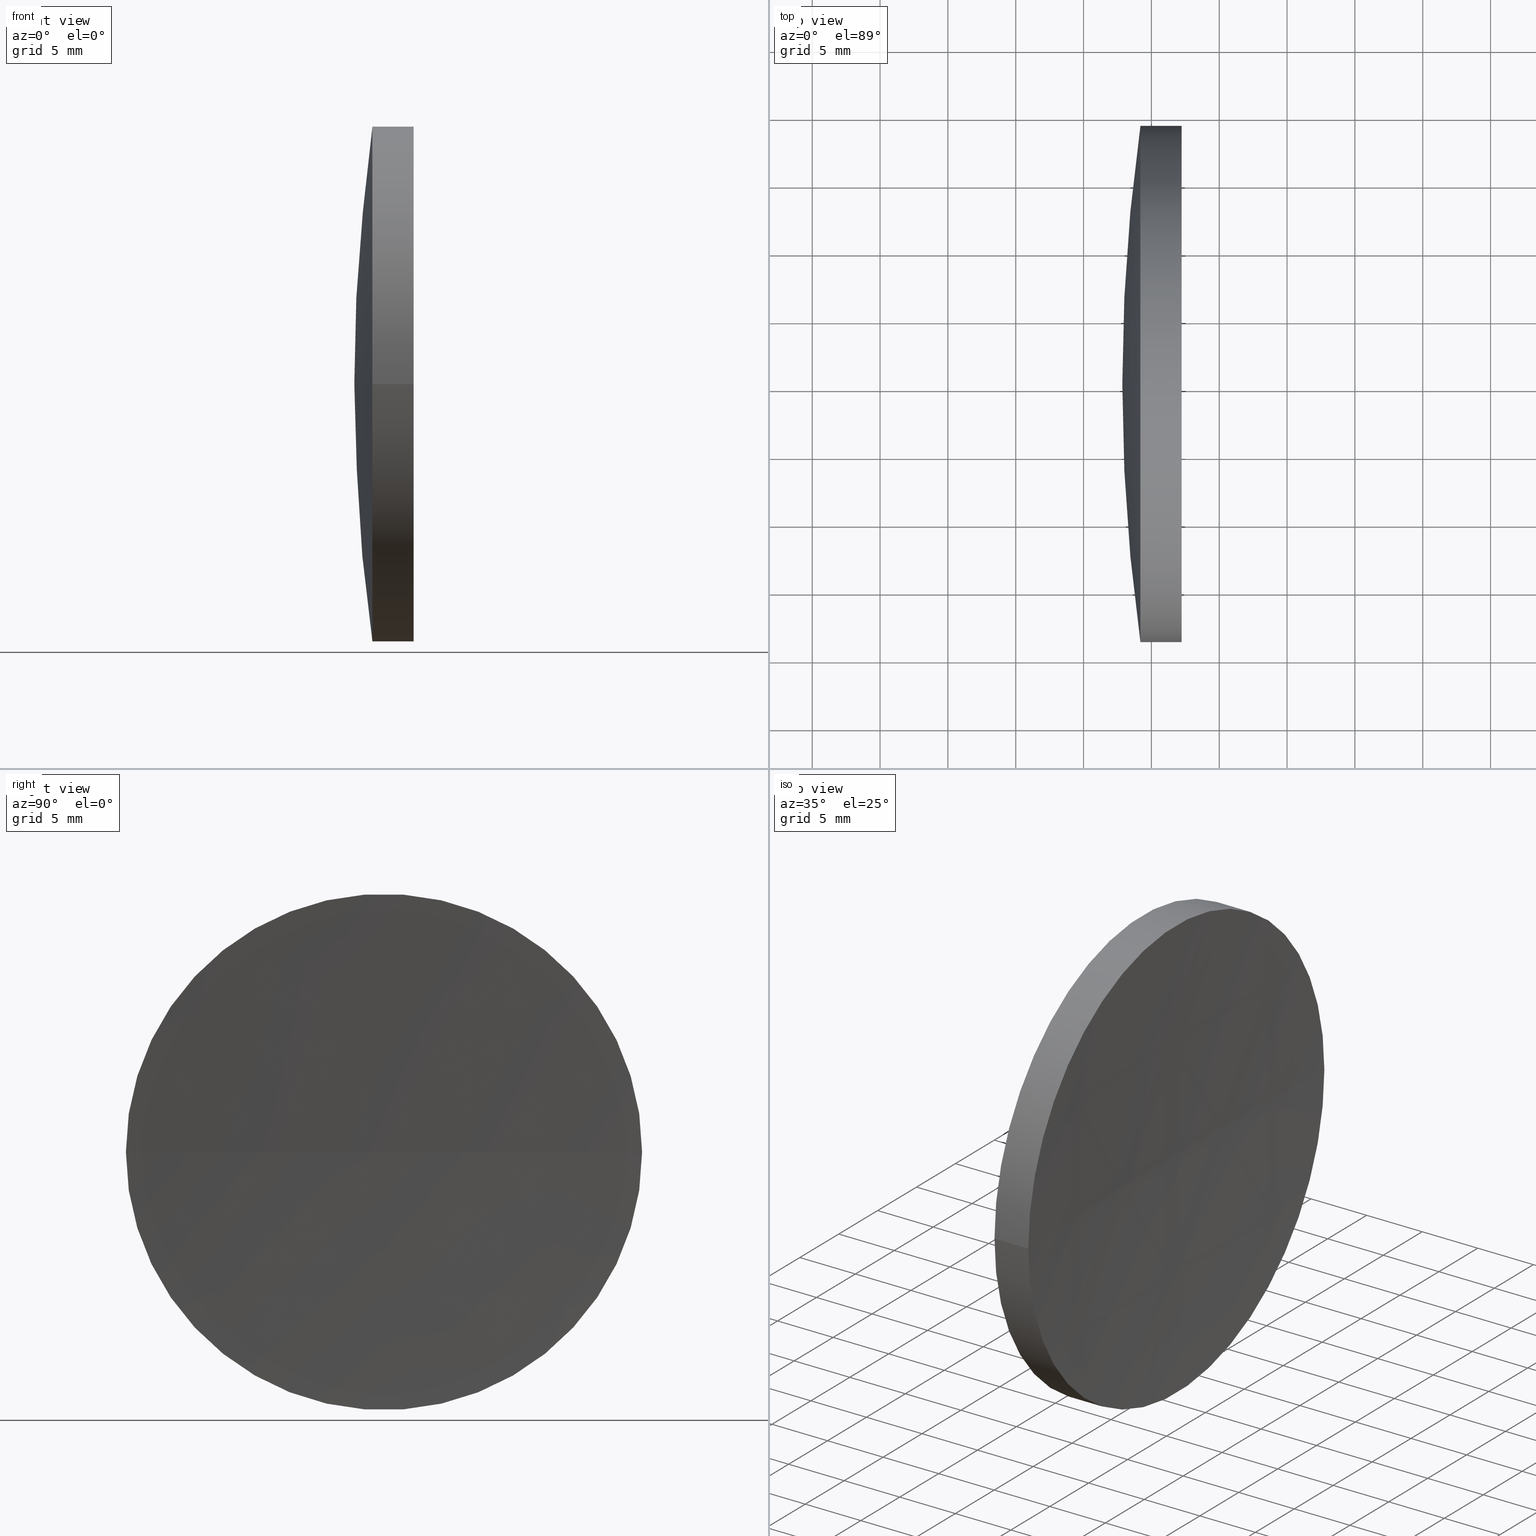
[diagram: canonical four-view strip — front | top / right | iso, engineering-drawing reading convention]
A machine part, canonical four-view strip (front | top / right | iso — engineering-drawing reading convention). The complete STEP part file that produces these views, byte-faithful:
ISO-10303-21;
HEADER;
FILE_DESCRIPTION (( 'STEP AP214' ),
    '1' );
FILE_NAME ('150018.STEP',
    '2019-07-04T08:29:05',
    ( '' ),
    ( '' ),
    'SwSTEP 2.0',
    'SolidWorks 2016',
    '' );
FILE_SCHEMA (( 'AUTOMOTIVE_DESIGN' ));
ENDSEC;

DATA;
#1 = AXIS2_PLACEMENT_3D ( 'NONE', #49, #84, #161 ) ;
#2 = DIRECTION ( 'NONE',  ( 0.0000000000000000000, 1.000000000000000000, 1.224646799147353200E-016 ) ) ;
#3 = EDGE_CURVE ( 'NONE', #71, #23, #38, .T. ) ;
#4 = FILL_AREA_STYLE ('',( #179 ) ) ;
#5 = SURFACE_STYLE_FILL_AREA ( #12 ) ;
#6 = UNCERTAINTY_MEASURE_WITH_UNIT (LENGTH_MEASURE( 1.000000000000000100E-005 ), #80, 'distance_accuracy_value', 'NONE');
#7 = VECTOR ( 'NONE', #172, 1000.000000000000000 ) ;
#8 = ORIENTED_EDGE ( 'NONE', *, *, #173, .T. ) ;
#9 = PRODUCT_RELATED_PRODUCT_CATEGORY ( 'part', '', ( #73 ) ) ;
#10 = FACE_OUTER_BOUND ( 'NONE', #144, .T. ) ;
#11 = AXIS2_PLACEMENT_3D ( 'NONE', #92, #156, #122 ) ;
#12 = FILL_AREA_STYLE ('',( #83 ) ) ;
#13 = PRESENTATION_STYLE_ASSIGNMENT (( #48 ) ) ;
#14 = DIRECTION ( 'NONE',  ( -0.0000000000000000000, 0.0000000000000000000, -1.000000000000000000 ) ) ;
#15 = DIRECTION ( 'NONE',  ( 0.0000000000000000000, -1.000000000000000000, 0.0000000000000000000 ) ) ;
#16 = DIRECTION ( 'NONE',  ( -1.000000000000000000, -6.937607244762875000E-016, -0.0000000000000000000 ) ) ;
#17 = ORIENTED_EDGE ( 'NONE', *, *, #81, .T. ) ;
#18 =( LENGTH_UNIT ( ) NAMED_UNIT ( * ) SI_UNIT ( .MILLI., .METRE. ) );
#19 = FACE_OUTER_BOUND ( 'NONE', #164, .T. ) ;
#20 = ORIENTED_EDGE ( 'NONE', *, *, #105, .F. ) ;
#21 = UNCERTAINTY_MEASURE_WITH_UNIT (LENGTH_MEASURE( 1.000000000000000100E-005 ), #192, 'distance_accuracy_value', 'NONE');
#22 = DIRECTION ( 'NONE',  ( 1.000000000000000000, 0.0000000000000000000, 0.0000000000000000000 ) ) ;
#23 = VERTEX_POINT ( 'NONE', #132 ) ;
#24 =( NAMED_UNIT ( * ) SI_UNIT ( $, .STERADIAN. ) SOLID_ANGLE_UNIT ( ) );
#25 = DIRECTION ( 'NONE',  ( -8.496118506040342700E-032, 1.224646799147353200E-016, -1.000000000000000000 ) ) ;
#26 = AXIS2_PLACEMENT_3D ( 'NONE', #154, #153, #47 ) ;
#27 =( NAMED_UNIT ( * ) SI_UNIT ( $, .STERADIAN. ) SOLID_ANGLE_UNIT ( ) );
#28 = CARTESIAN_POINT ( 'NONE',  ( 115.9444912979631700, 65.21684047094032600, 0.0000000000000000000 ) ) ;
#29 = CARTESIAN_POINT ( 'NONE',  ( 259.1554213155558800, 65.21684047094031200, 0.0000000000000000000 ) ) ;
#30 = STYLED_ITEM ( 'NONE', ( #13 ), #109 ) ;
#31 = ADVANCED_FACE ( 'NONE', ( #10 ), #145, .T. ) ;
#32 = AXIS2_PLACEMENT_3D ( 'NONE', #190, #176, #37 ) ;
#33 = EDGE_LOOP ( 'NONE', ( #150, #17, #151, #20 ) ) ;
#34 = AXIS2_PLACEMENT_3D ( 'NONE', #69, #175, #15 ) ;
#35 = CARTESIAN_POINT ( 'NONE',  ( 124.1897242847917700, 65.21684047094032600, 0.0000000000000000000 ) ) ;
#36 = CIRCLE ( 'NONE', #34, 19.02500000000002000 ) ;
#37 = DIRECTION ( 'NONE',  ( -5.843279076974507500E-016, 1.000000000000000000, 0.0000000000000000000 ) ) ;
#38 = CIRCLE ( 'NONE', #50, 136.3000000000000400 ) ;
#39 = SURFACE_STYLE_USAGE ( .BOTH. , #57 ) ;
#40 =( NAMED_UNIT ( * ) PLANE_ANGLE_UNIT ( ) SI_UNIT ( $, .RADIAN. ) );
#41 = EDGE_LOOP ( 'NONE', ( #70, #107, #157 ) ) ;
#42 = APPLICATION_CONTEXT ( 'automotive_design' ) ;
#43 = MECHANICAL_DESIGN_GEOMETRIC_PRESENTATION_REPRESENTATION (  '', ( #30 ), #119 ) ;
#44 = STYLED_ITEM ( 'NONE', ( #95 ), #82 ) ;
#45 = AXIS2_PLACEMENT_3D ( 'NONE', #180, #160, #112 ) ;
#46 = DIRECTION ( 'NONE',  ( 7.294500818824946100E-016, -1.000000000000000000, 0.0000000000000000000 ) ) ;
#47 = DIRECTION ( 'NONE',  ( 1.000000000000000000, 0.0000000000000000000, 0.0000000000000000000 ) ) ;
#48 = SURFACE_STYLE_USAGE ( .BOTH. , #108 ) ;
#49 = CARTESIAN_POINT ( 'NONE',  ( 259.1554213155558800, 65.21684047094031200, 0.0000000000000000000 ) ) ;
#50 = AXIS2_PLACEMENT_3D ( 'NONE', #29, #148, #22 ) ;
#51 = CARTESIAN_POINT ( 'NONE',  ( 115.9444912979631700, 65.21684047094032600, 0.0000000000000000000 ) ) ;
#52 = AXIS2_PLACEMENT_3D ( 'NONE', #106, #14, #54 ) ;
#53 = DIRECTION ( 'NONE',  ( -8.496118506040342700E-032, 1.224646799147353200E-016, -1.000000000000000000 ) ) ;
#54 = DIRECTION ( 'NONE',  ( -8.145436717719414800E-016, 1.000000000000000000, 0.0000000000000000000 ) ) ;
#55 = PRESENTATION_LAYER_ASSIGNMENT (  '', '', ( #44 ) ) ;
#56 = AXIS2_PLACEMENT_3D ( 'NONE', #94, #53, #2 ) ;
#57 = SURFACE_SIDE_STYLE ('',( #170 ) ) ;
#58 =( GEOMETRIC_REPRESENTATION_CONTEXT ( 3 ) GLOBAL_UNCERTAINTY_ASSIGNED_CONTEXT ( ( #21 ) ) GLOBAL_UNIT_ASSIGNED_CONTEXT ( ( #192, #118, #27 ) ) REPRESENTATION_CONTEXT ( 'NONE', 'WORKASPACE' ) );
#59 = CIRCLE ( 'NONE', #45, 19.02500000000002000 ) ;
#60 = ORIENTED_EDGE ( 'NONE', *, *, #81, .F. ) ;
#61 = VERTEX_POINT ( 'NONE', #186 ) ;
#62 = DIRECTION ( 'NONE',  ( -1.000000000000000000, -6.937607244762875000E-016, -0.0000000000000000000 ) ) ;
#63 = SPHERICAL_SURFACE ( 'NONE', #52, 136.3000000000000400 ) ;
#64 = EDGE_CURVE ( 'NONE', #71, #124, #66, .T. ) ;
#65 = CARTESIAN_POINT ( 'NONE',  ( 115.9444912979631500, 84.24184047094033200, 2.329890535377840300E-015 ) ) ;
#66 = CIRCLE ( 'NONE', #131, 19.02499999999999500 ) ;
#67 = DIRECTION ( 'NONE',  ( -1.000000000000000000, -6.937607244762875000E-016, -0.0000000000000000000 ) ) ;
#68 = CARTESIAN_POINT ( 'NONE',  ( 126.7554213155557800, 65.21684047093999900, 0.0000000000000000000 ) ) ;
#69 = CARTESIAN_POINT ( 'NONE',  ( 127.2319709531308800, 65.21684047094034000, 0.0000000000000000000 ) ) ;
#70 = ORIENTED_EDGE ( 'NONE', *, *, #141, .F. ) ;
#71 = VERTEX_POINT ( 'NONE', #120 ) ;
#72 = CARTESIAN_POINT ( 'NONE',  ( 124.1897242847917800, 46.19184047094033500, 0.0000000000000000000 ) ) ;
#73 = PRODUCT ( '150018', '150018', '', ( #166 ) ) ;
#74 = DIRECTION ( 'NONE',  ( 7.294500818824946100E-016, -1.000000000000000000, 0.0000000000000000000 ) ) ;
#75 = FACE_OUTER_BOUND ( 'NONE', #178, .T. ) ;
#76 = AXIS2_PLACEMENT_3D ( 'NONE', #126, #16, #74 ) ;
#77 = EDGE_CURVE ( 'NONE', #61, #79, #183, .T. ) ;
#78 = ADVANCED_FACE ( 'NONE', ( #149 ), #110, .F. ) ;
#79 = VERTEX_POINT ( 'NONE', #68 ) ;
#80 =( LENGTH_UNIT ( ) NAMED_UNIT ( * ) SI_UNIT ( .MILLI., .METRE. ) );
#81 = EDGE_CURVE ( 'NONE', #61, #71, #135, .T. ) ;
#82 = ADVANCED_BREP_SHAPE_REPRESENTATION ( '150018', ( #109, #188 ), #58 ) ;
#83 = FILL_AREA_STYLE_COLOUR ( '', #85 ) ;
#84 = DIRECTION ( 'NONE',  ( -0.0000000000000000000, 0.0000000000000000000, -1.000000000000000000 ) ) ;
#85 = COLOUR_RGB ( '',1.000000000000000000, 1.000000000000000000, 1.000000000000000000 ) ;
#86 = MECHANICAL_DESIGN_GEOMETRIC_PRESENTATION_REPRESENTATION (  '', ( #44 ), #103 ) ;
#87 = DIRECTION ( 'NONE',  ( 1.000000000000000000, 0.0000000000000000000, 0.0000000000000000000 ) ) ;
#88 = PRESENTATION_LAYER_ASSIGNMENT (  '', '', ( #30 ) ) ;
#89 = CYLINDRICAL_SURFACE ( 'NONE', #147, 19.02500000000000600 ) ;
#90 = APPLICATION_PROTOCOL_DEFINITION ( 'draft international standard', 'automotive_design', 1998, #143 ) ;
#91 = FACE_OUTER_BOUND ( 'NONE', #33, .T. ) ;
#92 = CARTESIAN_POINT ( 'NONE',  ( 506.7554213155558500, 65.21684047094022700, 0.0000000000000000000 ) ) ;
#93 = CARTESIAN_POINT ( 'NONE',  ( 115.9444912979631800, 46.19184047094032100, 0.0000000000000000000 ) ) ;
#94 = CARTESIAN_POINT ( 'NONE',  ( 506.7554213155558500, 65.21684047094022700, 0.0000000000000000000 ) ) ;
#95 = PRESENTATION_STYLE_ASSIGNMENT (( #39 ) ) ;
#96 = DIRECTION ( 'NONE',  ( 7.294500818824942100E-016, -1.000000000000000000, 0.0000000000000000000 ) ) ;
#97 = ORIENTED_EDGE ( 'NONE', *, *, #167, .F. ) ;
#98 = DIRECTION ( 'NONE',  ( -1.000000000000000000, -6.937607244762875000E-016, -0.0000000000000000000 ) ) ;
#99 = CARTESIAN_POINT ( 'NONE',  ( 259.1554213155558800, 65.21684047094031200, 0.0000000000000000000 ) ) ;
#100 = APPLICATION_PROTOCOL_DEFINITION ( 'draft international standard', 'automotive_design', 1998, #42 ) ;
#101 = PRODUCT_DEFINITION_CONTEXT ( 'detailed design', #143, 'design' ) ;
#102 = ORIENTED_EDGE ( 'NONE', *, *, #142, .T. ) ;
#103 =( GEOMETRIC_REPRESENTATION_CONTEXT ( 3 ) GLOBAL_UNCERTAINTY_ASSIGNED_CONTEXT ( ( #129 ) ) GLOBAL_UNIT_ASSIGNED_CONTEXT ( ( #18, #40, #163 ) ) REPRESENTATION_CONTEXT ( 'NONE', 'WORKASPACE' ) );
#104 = SPHERICAL_SURFACE ( 'NONE', #32, 380.0000000000000600 ) ;
#105 = EDGE_CURVE ( 'NONE', #140, #124, #114, .T. ) ;
#106 = CARTESIAN_POINT ( 'NONE',  ( 259.1554213155558800, 65.21684047094031200, 0.0000000000000000000 ) ) ;
#107 = ORIENTED_EDGE ( 'NONE', *, *, #167, .T. ) ;
#108 = SURFACE_SIDE_STYLE ('',( #5 ) ) ;
#109 = MANIFOLD_SOLID_BREP ( '��ת1', #137 ) ;
#110 = SPHERICAL_SURFACE ( 'NONE', #11, 380.0000000000000600 ) ;
#111 = ORIENTED_EDGE ( 'NONE', *, *, #121, .T. ) ;
#112 = DIRECTION ( 'NONE',  ( 0.0000000000000000000, -1.000000000000000000, 0.0000000000000000000 ) ) ;
#113 = CARTESIAN_POINT ( 'NONE',  ( 0.0000000000000000000, 0.0000000000000000000, 0.0000000000000000000 ) ) ;
#114 = LINE ( 'NONE', #93, #116 ) ;
#115 = EDGE_LOOP ( 'NONE', ( #158, #8, #133 ) ) ;
#116 = VECTOR ( 'NONE', #189, 1000.000000000000000 ) ;
#117 = ORIENTED_EDGE ( 'NONE', *, *, #105, .T. ) ;
#118 =( NAMED_UNIT ( * ) PLANE_ANGLE_UNIT ( ) SI_UNIT ( $, .RADIAN. ) );
#119 =( GEOMETRIC_REPRESENTATION_CONTEXT ( 3 ) GLOBAL_UNCERTAINTY_ASSIGNED_CONTEXT ( ( #6 ) ) GLOBAL_UNIT_ASSIGNED_CONTEXT ( ( #80, #159, #24 ) ) REPRESENTATION_CONTEXT ( 'NONE', 'WORKASPACE' ) );
#120 = CARTESIAN_POINT ( 'NONE',  ( 124.1897242847917500, 84.24184047094033200, 2.329890535377839500E-015 ) ) ;
#121 = EDGE_CURVE ( 'NONE', #61, #140, #36, .T. ) ;
#122 = DIRECTION ( 'NONE',  ( -5.843279076974507500E-016, 1.000000000000000000, 0.0000000000000000000 ) ) ;
#123 = ADVANCED_FACE ( 'NONE', ( #75 ), #63, .T. ) ;
#124 = VERTEX_POINT ( 'NONE', #72 ) ;
#125 = SHAPE_DEFINITION_REPRESENTATION ( #152, #82 ) ;
#126 = CARTESIAN_POINT ( 'NONE',  ( 124.1897242847917700, 65.21684047094032600, 0.0000000000000000000 ) ) ;
#127 = ORIENTED_EDGE ( 'NONE', *, *, #121, .F. ) ;
#128 = DIRECTION ( 'NONE',  ( 0.0000000000000000000, 1.000000000000000000, 1.224646799147353200E-016 ) ) ;
#129 = UNCERTAINTY_MEASURE_WITH_UNIT (LENGTH_MEASURE( 1.000000000000000100E-005 ), #18, 'distance_accuracy_value', 'NONE');
#130 = CIRCLE ( 'NONE', #191, 136.3000000000000400 ) ;
#131 = AXIS2_PLACEMENT_3D ( 'NONE', #35, #67, #46 ) ;
#132 = CARTESIAN_POINT ( 'NONE',  ( 122.8554213155558300, 65.21684047094022700, 0.0000000000000000000 ) ) ;
#133 = ORIENTED_EDGE ( 'NONE', *, *, #3, .F. ) ;
#134 = CIRCLE ( 'NONE', #56, 380.0000000000000600 ) ;
#135 = LINE ( 'NONE', #65, #7 ) ;
#136 = DIRECTION ( 'NONE',  ( 7.294500818824942100E-016, -1.000000000000000000, 0.0000000000000000000 ) ) ;
#137 = CLOSED_SHELL ( 'NONE', ( #169, #184, #78, #146, #31, #123 ) ) ;
#138 = ORIENTED_EDGE ( 'NONE', *, *, #77, .T. ) ;
#139 = CARTESIAN_POINT ( 'NONE',  ( 127.2319709531309400, 46.19184047093946800, -2.329890535377901000E-015 ) ) ;
#140 = VERTEX_POINT ( 'NONE', #139 ) ;
#141 = EDGE_CURVE ( 'NONE', #140, #61, #59, .T. ) ;
#142 = EDGE_CURVE ( 'NONE', #124, #71, #162, .T. ) ;
#143 = APPLICATION_CONTEXT ( 'automotive_design' ) ;
#144 = EDGE_LOOP ( 'NONE', ( #60, #111, #117, #185 ) ) ;
#145 = CYLINDRICAL_SURFACE ( 'NONE', #182, 19.02500000000000600 ) ;
#146 = ADVANCED_FACE ( 'NONE', ( #19 ), #104, .F. ) ;
#147 = AXIS2_PLACEMENT_3D ( 'NONE', #51, #98, #96 ) ;
#148 = DIRECTION ( 'NONE',  ( -0.0000000000000000000, 0.0000000000000000000, 1.000000000000000000 ) ) ;
#149 = FACE_OUTER_BOUND ( 'NONE', #41, .T. ) ;
#150 = ORIENTED_EDGE ( 'NONE', *, *, #141, .T. ) ;
#151 = ORIENTED_EDGE ( 'NONE', *, *, #142, .F. ) ;
#152 = PRODUCT_DEFINITION_SHAPE ( 'NONE', 'NONE',  #155 ) ;
#153 = DIRECTION ( 'NONE',  ( 0.0000000000000000000, -0.0000000000000000000, 1.000000000000000000 ) ) ;
#154 = CARTESIAN_POINT ( 'NONE',  ( 506.7554213155558500, 65.21684047094022700, 0.0000000000000000000 ) ) ;
#155 = PRODUCT_DEFINITION ( 'δ֪', '', #168, #101 ) ;
#156 = DIRECTION ( 'NONE',  ( 0.0000000000000000000, 0.0000000000000000000, -1.000000000000000000 ) ) ;
#157 = ORIENTED_EDGE ( 'NONE', *, *, #77, .F. ) ;
#158 = ORIENTED_EDGE ( 'NONE', *, *, #64, .T. ) ;
#159 =( NAMED_UNIT ( * ) PLANE_ANGLE_UNIT ( ) SI_UNIT ( $, .RADIAN. ) );
#160 = DIRECTION ( 'NONE',  ( -1.000000000000000000, -6.937607244762875000E-016, -0.0000000000000000000 ) ) ;
#161 = DIRECTION ( 'NONE',  ( -8.145436717719414800E-016, 1.000000000000000000, 0.0000000000000000000 ) ) ;
#162 = CIRCLE ( 'NONE', #76, 19.02499999999999500 ) ;
#163 =( NAMED_UNIT ( * ) SI_UNIT ( $, .STERADIAN. ) SOLID_ANGLE_UNIT ( ) );
#164 = EDGE_LOOP ( 'NONE', ( #97, #127, #138 ) ) ;
#165 = ORIENTED_EDGE ( 'NONE', *, *, #3, .T. ) ;
#166 = PRODUCT_CONTEXT ( 'NONE', #42, 'mechanical' ) ;
#167 = EDGE_CURVE ( 'NONE', #140, #79, #134, .T. ) ;
#168 = PRODUCT_DEFINITION_FORMATION_WITH_SPECIFIED_SOURCE ( '�κ�', '', #73, .NOT_KNOWN. ) ;
#169 = ADVANCED_FACE ( 'NONE', ( #177 ), #171, .T. ) ;
#170 = SURFACE_STYLE_FILL_AREA ( #4 ) ;
#171 = SPHERICAL_SURFACE ( 'NONE', #1, 136.3000000000000400 ) ;
#172 = DIRECTION ( 'NONE',  ( -1.000000000000000000, -6.937607244762875000E-016, -0.0000000000000000000 ) ) ;
#173 = EDGE_CURVE ( 'NONE', #124, #23, #130, .T. ) ;
#174 = COLOUR_RGB ( '',1.000000000000000000, 1.000000000000000000, 1.000000000000000000 ) ;
#175 = DIRECTION ( 'NONE',  ( -1.000000000000000000, -6.937607244762875000E-016, -0.0000000000000000000 ) ) ;
#176 = DIRECTION ( 'NONE',  ( 0.0000000000000000000, 0.0000000000000000000, -1.000000000000000000 ) ) ;
#177 = FACE_OUTER_BOUND ( 'NONE', #115, .T. ) ;
#178 = EDGE_LOOP ( 'NONE', ( #187, #102, #165 ) ) ;
#179 = FILL_AREA_STYLE_COLOUR ( '', #174 ) ;
#180 = CARTESIAN_POINT ( 'NONE',  ( 127.2319709531308800, 65.21684047094034000, 0.0000000000000000000 ) ) ;
#181 = DIRECTION ( 'NONE',  ( 0.0000000000000000000, 0.0000000000000000000, 1.000000000000000000 ) ) ;
#182 = AXIS2_PLACEMENT_3D ( 'NONE', #28, #62, #136 ) ;
#183 = CIRCLE ( 'NONE', #26, 380.0000000000001100 ) ;
#184 = ADVANCED_FACE ( 'NONE', ( #91 ), #89, .T. ) ;
#185 = ORIENTED_EDGE ( 'NONE', *, *, #64, .F. ) ;
#186 = CARTESIAN_POINT ( 'NONE',  ( 127.2319709531309400, 84.24184047094084300, 0.0000000000000000000 ) ) ;
#187 = ORIENTED_EDGE ( 'NONE', *, *, #173, .F. ) ;
#188 = AXIS2_PLACEMENT_3D ( 'NONE', #113, #181, #87 ) ;
#189 = DIRECTION ( 'NONE',  ( -1.000000000000000000, -6.937607244762875000E-016, -0.0000000000000000000 ) ) ;
#190 = CARTESIAN_POINT ( 'NONE',  ( 506.7554213155558500, 65.21684047094022700, 0.0000000000000000000 ) ) ;
#191 = AXIS2_PLACEMENT_3D ( 'NONE', #99, #25, #128 ) ;
#192 =( LENGTH_UNIT ( ) NAMED_UNIT ( * ) SI_UNIT ( .MILLI., .METRE. ) );
ENDSEC;
END-ISO-10303-21;
